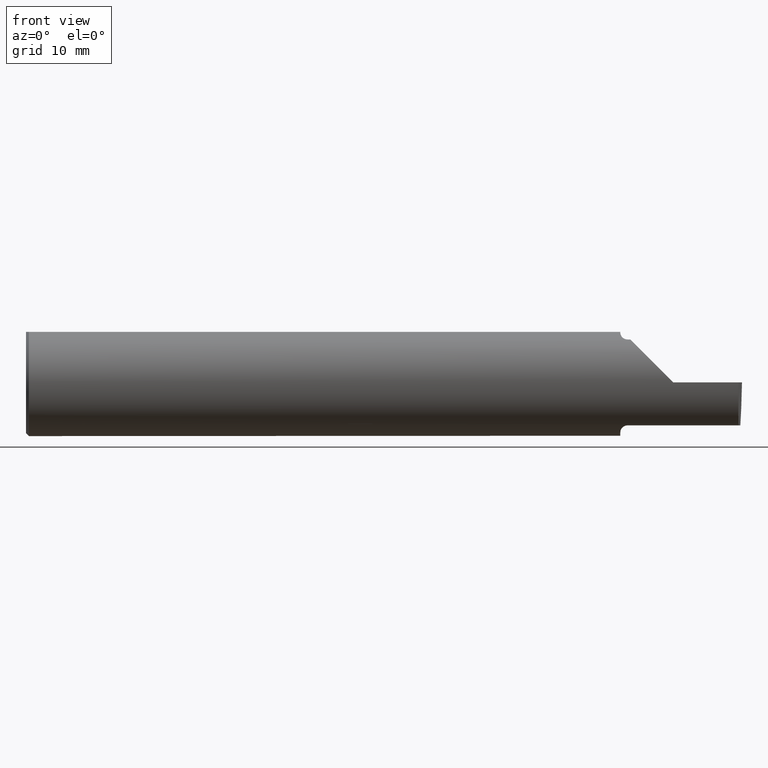
[diagram: clean part render]
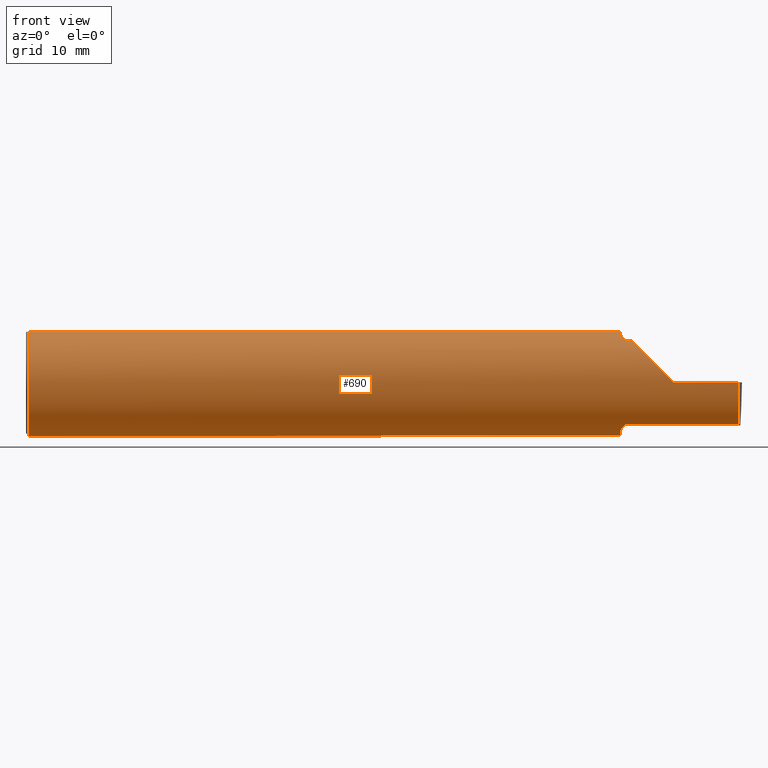
[diagram: same view with one face highlighted and labeled with its STEP entity id]
A machine part, front view. The second image highlights one B-rep face of the part: STEP entity #690.
In plain terms, the highlighted cylindrical surface (partial cylindrical patch) has radius 4.7587 mm, axis along (-1, -0, -0).
Its self-contained STEP definition (entity closure, byte-faithful):
#2 = CARTESIAN_POINT ( 'NONE',  ( 2.113883229301068312, -0.1172600179964003175, 0.1461167706989304760 ) ) ;
#13 = VERTEX_POINT ( 'NONE', #480 ) ;
#14 = DIRECTION ( 'NONE',  ( 0.000000000000000000, 0.000000000000000000, 1.000000000000000000 ) ) ;
#19 = CARTESIAN_POINT ( 'NONE',  ( 0.000000000000000000, 0.06325108694718235836, 0.1763499999999999235 ) ) ;
#23 = ORIENTED_EDGE ( 'NONE', *, *, #715, .F. ) ;
#41 = AXIS2_PLACEMENT_3D ( 'NONE', #283, #216, #14 ) ;
#46 = CARTESIAN_POINT ( 'NONE',  ( 2.075000000000000178, -0.06851976604679065053, 0.1743704796142198643 ) ) ;
#52 = EDGE_CURVE ( 'NONE', #337, #13, #750, .T. ) ;
#60 = DIRECTION ( 'NONE',  ( -1.000000000000000000, -0.000000000000000000, -0.000000000000000000 ) ) ;
#69 = ORIENTED_EDGE ( 'NONE', *, *, #282, .F. ) ;
#70 = CARTESIAN_POINT ( 'NONE',  ( 0.009999999999999346217, -0.06325108694718235836, 0.1763499999999999235 ) ) ;
#84 = ORIENTED_EDGE ( 'NONE', *, *, #433, .T. ) ;
#92 = EDGE_CURVE ( 'NONE', #700, #756, #635, .T. ) ;
#95 = CARTESIAN_POINT ( 'NONE',  ( 2.076062863587533780, -0.08334999999998818354, 0.1677879614275171183 ) ) ;
#117 = CARTESIAN_POINT ( 'NONE',  ( 2.079475235432781677, -0.09757364237049398481, -0.1599863467203318512 ) ) ;
#118 = CARTESIAN_POINT ( 'NONE',  ( 2.202189699843948301, -0.1873500000000000443, 0.05781030015605120170 ) ) ;
#122 = CIRCLE ( 'NONE', #548, 0.1873499999999999888 ) ;
#134 = ORIENTED_EDGE ( 'NONE', *, *, #340, .F. ) ;
#136 = CARTESIAN_POINT ( 'NONE',  ( 2.268430449999999876, -0.1172600179964006090, -0.1461167706989303927 ) ) ;
#147 = CARTESIAN_POINT ( 'NONE',  ( 2.095724556588812515, -0.1172600179964060629, 0.1461167706989260351 ) ) ;
#150 = ORIENTED_EDGE ( 'NONE', *, *, #629, .F. ) ;
#151 = CARTESIAN_POINT ( 'NONE',  ( 2.074999999999999734, -0.07360907839729495528, 0.1723706084642000480 ) ) ;
#158 = CARTESIAN_POINT ( 'NONE',  ( 2.084249444250374061, -0.1073163636891284328, 0.1536158790136665231 ) ) ;
#169 = CARTESIAN_POINT ( 'NONE',  ( 2.075000000000000178, -0.07359296612170564134, -0.1723769398647691520 ) ) ;
#172 = CARTESIAN_POINT ( 'NONE',  ( 3.749399456654646757E-32, -0.1873499999999999610, 3.061616997868383634E-16 ) ) ;
#178 = B_SPLINE_CURVE_WITH_KNOTS ( 'NONE', 3,
 ( #503, #619, #169, #431 ),
 .UNSPECIFIED., .F., .F.,
 ( 4, 4 ),
 ( 0.001278539404338874426, 0.001694873732696222223 ),
 .UNSPECIFIED. ) ;
#185 = VECTOR ( 'NONE', #458, 39.37007874015748143 ) ;
#189 = VERTEX_POINT ( 'NONE', #70 ) ;
#191 = CARTESIAN_POINT ( 'NONE',  ( 2.076062863587533780, -0.08334999999998818354, 0.1677879614275171183 ) ) ;
#201 = VERTEX_POINT ( 'NONE', #383 ) ;
#209 = VECTOR ( 'NONE', #721, 39.37007874015748143 ) ;
#212 = ORIENTED_EDGE ( 'NONE', *, *, #622, .F. ) ;
#216 = DIRECTION ( 'NONE',  ( -1.000000000000000000, -0.000000000000000000, -0.000000000000000000 ) ) ;
#233 = CARTESIAN_POINT ( 'NONE',  ( 2.100000000000000089, -0.1172600179964006090, 0.1461167706989303927 ) ) ;
#237 = CARTESIAN_POINT ( 'NONE',  ( 2.086340974786207170, -0.1102890168945985933, -0.1514792188789464422 ) ) ;
#239 = VECTOR ( 'NONE', #674, 39.37007874015748143 ) ;
#243 = VERTEX_POINT ( 'NONE', #765 ) ;
#252 = DIRECTION ( 'NONE',  ( 1.000000000000000000, 0.000000000000000000, 0.000000000000000000 ) ) ;
#268 = CARTESIAN_POINT ( 'NONE',  ( 2.086319809340846820, -0.1102629523538395662, 0.1514982751257170079 ) ) ;
#273 = CARTESIAN_POINT ( 'NONE',  ( 0.000000000000000000, -0.06325108694718235836, 0.1763499999999999235 ) ) ;
#282 = EDGE_CURVE ( 'NONE', #201, #481, #691, .T. ) ;
#283 = CARTESIAN_POINT ( 'NONE',  ( 0.000000000000000000, 0.000000000000000000, 0.000000000000000000 ) ) ;
#287 = LINE ( 'NONE', #172, #239 ) ;
#288 = DIRECTION ( 'NONE',  ( 1.000000000000000000, 0.000000000000000000, 0.000000000000000000 ) ) ;
#290 = CARTESIAN_POINT ( 'NONE',  ( 2.097868998470238555, -0.1172600179964006506, -0.1461167706989303927 ) ) ;
#298 = CARTESIAN_POINT ( 'NONE',  ( 2.487121452143546296, -0.1873500000000000165, -0.05781030015605123640 ) ) ;
#300 = DIRECTION ( 'NONE',  ( 0.000000000000000000, 0.000000000000000000, -1.000000000000000000 ) ) ;
#304 = CARTESIAN_POINT ( 'NONE',  ( 0.009999999999999346217, 0.000000000000000000, 0.000000000000000000 ) ) ;
#311 = ORIENTED_EDGE ( 'NONE', *, *, #807, .F. ) ;
#314 = VECTOR ( 'NONE', #651, 39.37007874015748143 ) ;
#317 = EDGE_CURVE ( 'NONE', #13, #363, #707, .T. ) ;
#337 = VERTEX_POINT ( 'NONE', #530 ) ;
#340 = EDGE_CURVE ( 'NONE', #521, #756, #459, .T. ) ;
#345 = CARTESIAN_POINT ( 'NONE',  ( 2.100000000000000089, -0.1172600179964006090, 0.1461167706989303927 ) ) ;
#355 = ORIENTED_EDGE ( 'NONE', *, *, #317, .F. ) ;
#363 = VERTEX_POINT ( 'NONE', #768 ) ;
#364 = CARTESIAN_POINT ( 'NONE',  ( 2.077380638915945710, -0.09060738690120606620, -0.1640321561807271122 ) ) ;
#365 = CARTESIAN_POINT ( 'NONE',  ( 2.150065971957464850, -0.1623470442677540371, 0.1099340280425340488 ) ) ;
#373 = ORIENTED_EDGE ( 'NONE', *, *, #769, .T. ) ;
#376 = ORIENTED_EDGE ( 'NONE', *, *, #52, .F. ) ;
#383 = CARTESIAN_POINT ( 'NONE',  ( 2.488026713523223243, -0.1172600179964006090, -0.1461167706989303927 ) ) ;
#388 = ORIENTED_EDGE ( 'NONE', *, *, #551, .T. ) ;
#389 = B_SPLINE_CURVE_WITH_KNOTS ( 'NONE', 3,
 ( #653, #786, #646, #158, #268, #776, #147, #345 ),
 .UNSPECIFIED., .F., .F.,
 ( 4, 2, 2, 4 ),
 ( 0.0004561457252213468741, 0.001084815134961802192, 0.001399149839832029363, 0.001713484544702256317 ),
 .UNSPECIFIED. ) ;
#410 = CARTESIAN_POINT ( 'NONE',  ( 0.009999999999999346217, 0.000000000000000000, -0.1873499999999999888 ) ) ;
#411 = CARTESIAN_POINT ( 'NONE',  ( 2.100000000000000089, -0.1172600179964006090, -0.1461167706989303927 ) ) ;
#413 = CYLINDRICAL_SURFACE ( 'NONE', #41, 0.1873499999999999888 ) ;
#428 = CARTESIAN_POINT ( 'NONE',  ( 2.488026713523223243, -0.1172600179964006090, -0.1461167706989303927 ) ) ;
#429 = CARTESIAN_POINT ( 'NONE',  ( 2.075000000000000178, 0.000000000000000000, 0.000000000000000000 ) ) ;
#431 = CARTESIAN_POINT ( 'NONE',  ( 2.075000000000000178, -0.06851976604679065053, -0.1743704796142198643 ) ) ;
#432 = CARTESIAN_POINT ( 'NONE',  ( 2.260000000000000231, -0.1873499999999999888, 2.939152317953647352E-17 ) ) ;
#433 = EDGE_CURVE ( 'NONE', #189, #685, #122, .T. ) ;
#437 = EDGE_CURVE ( 'NONE', #624, #805, #444, .T. ) ;
#444 = CIRCLE ( 'NONE', #763, 0.1873499999999999888 ) ;
#458 = DIRECTION ( 'NONE',  ( 1.000000000000000000, 0.000000000000000000, 0.000000000000000000 ) ) ;
#459 = LINE ( 'NONE', #701, #314 ) ;
#468 = DIRECTION ( 'NONE',  ( 0.000000000000000000, 0.000000000000000000, -1.000000000000000000 ) ) ;
#471 = CARTESIAN_POINT ( 'NONE',  ( 0.009999999999999346217, 0.000000000000000000, 0.000000000000000000 ) ) ;
#478 = CARTESIAN_POINT ( 'NONE',  ( 2.092163414264744059, -0.1151183835841405462, -0.1478135984872521735 ) ) ;
#480 = CARTESIAN_POINT ( 'NONE',  ( 2.075000000000000178, 0.06325108694718235836, 0.1763499999999999235 ) ) ;
#481 = VERTEX_POINT ( 'NONE', #411 ) ;
#483 = CARTESIAN_POINT ( 'NONE',  ( 2.487084196965268390, -0.1623470442677540926, -0.1099340280425339100 ) ) ;
#486 = ORIENTED_EDGE ( 'NONE', *, *, #437, .F. ) ;
#493 = ORIENTED_EDGE ( 'NONE', *, *, #568, .T. ) ;
#495 = DIRECTION ( 'NONE',  ( 0.000000000000000000, 0.000000000000000000, -1.000000000000000000 ) ) ;
#503 = CARTESIAN_POINT ( 'NONE',  ( 2.076062863587535556, -0.08334999999999991027, -0.1677879614275112619 ) ) ;
#517 = CARTESIAN_POINT ( 'NONE',  ( 2.260000000000000231, -0.1873499999999999888, 2.939152317953647352E-17 ) ) ;
#521 = VERTEX_POINT ( 'NONE', #233 ) ;
#522 = CARTESIAN_POINT ( 'NONE',  ( 2.075000000000000178, -0.06851976604679065053, 0.1743704796142198643 ) ) ;
#530 = CARTESIAN_POINT ( 'NONE',  ( 2.075000000000000178, -0.06851976604679065053, -0.1743704796142198643 ) ) ;
#548 = AXIS2_PLACEMENT_3D ( 'NONE', #471, #638, #468 ) ;
#551 = EDGE_CURVE ( 'NONE', #201, #676, #686, .T. ) ;
#552 = CARTESIAN_POINT ( 'NONE',  ( 2.076062863587535556, -0.08334999999999991027, -0.1677879614275112619 ) ) ;
#553 = CARTESIAN_POINT ( 'NONE',  ( 2.113883229301068312, -0.1172600179964003175, 0.1461167706989304760 ) ) ;
#555 = B_SPLINE_CURVE_WITH_KNOTS ( 'NONE', 3,
 ( #522, #151, #719, #95 ),
 .UNSPECIFIED., .F., .F.,
 ( 4, 4 ),
 ( 4.423516731080748054E-05, 0.0004561457252213468741 ),
 .UNSPECIFIED. ) ;
#560 = ORIENTED_EDGE ( 'NONE', *, *, #570, .F. ) ;
#561 = VECTOR ( 'NONE', #60, 39.37007874015748143 ) ;
#568 = EDGE_CURVE ( 'NONE', #676, #700, #287, .T. ) ;
#570 = EDGE_CURVE ( 'NONE', #189, #624, #612, .T. ) ;
#599 = CARTESIAN_POINT ( 'NONE',  ( 2.095804171164107110, -0.1167508198888948939, -0.1465276362740038363 ) ) ;
#612 = LINE ( 'NONE', #273, #185 ) ;
#615 = CARTESIAN_POINT ( 'NONE',  ( 2.076612951569643872, -0.08702537370779858672, -0.1659621904011592264 ) ) ;
#619 = CARTESIAN_POINT ( 'NONE',  ( 2.075346246588685162, -0.07856197451716401270, -0.1701664510438046229 ) ) ;
#622 = EDGE_CURVE ( 'NONE', #805, #785, #555, .T. ) ;
#624 = VERTEX_POINT ( 'NONE', #659 ) ;
#629 = EDGE_CURVE ( 'NONE', #785, #521, #389, .T. ) ;
#635 =( BOUNDED_CURVE ( )  B_SPLINE_CURVE ( 3, ( #432, #118, #365, #553 ),
 .UNSPECIFIED., .F., .F. ) 
 B_SPLINE_CURVE_WITH_KNOTS ( ( 4, 4 ),
 ( 4.712388980384688786, 5.606916381293139295 ),
 .UNSPECIFIED. ) 
 CURVE ( )  GEOMETRIC_REPRESENTATION_ITEM ( )  RATIONAL_B_SPLINE_CURVE ( ( 1.000000000000000000, 0.9344226172588797619, 0.9344226172588797619, 1.000000000000000000 ) ) 
 REPRESENTATION_ITEM ( '' )  );
#638 = DIRECTION ( 'NONE',  ( 1.000000000000000000, 0.000000000000000000, 0.000000000000000000 ) ) ;
#646 = CARTESIAN_POINT ( 'NONE',  ( 2.079075010165368997, -0.09778159395695865119, 0.1599914159748310749 ) ) ;
#651 = DIRECTION ( 'NONE',  ( 1.000000000000000000, 0.000000000000000000, 0.000000000000000000 ) ) ;
#653 = CARTESIAN_POINT ( 'NONE',  ( 2.076062863587533780, -0.08334999999998818354, 0.1677879614275171183 ) ) ;
#656 = AXIS2_PLACEMENT_3D ( 'NONE', #304, #252, #300 ) ;
#659 = CARTESIAN_POINT ( 'NONE',  ( 2.075000000000000178, -0.06325108694718283020, 0.1763499999999999235 ) ) ;
#660 = CARTESIAN_POINT ( 'NONE',  ( 2.488131149766799943, -0.1873499999999999888, 0.000000000000000000 ) ) ;
#662 = FACE_OUTER_BOUND ( 'NONE', #708, .T. ) ;
#670 = CIRCLE ( 'NONE', #656, 0.1873499999999999888 ) ;
#672 = CARTESIAN_POINT ( 'NONE',  ( 2.100000000000000089, -0.1172600179964006090, -0.1461167706989303927 ) ) ;
#674 = DIRECTION ( 'NONE',  ( -1.000000000000000000, -0.000000000000000000, -0.000000000000000000 ) ) ;
#676 = VERTEX_POINT ( 'NONE', #709 ) ;
#677 = CARTESIAN_POINT ( 'NONE',  ( 2.080806801261507299, -0.1009700360460130675, -0.1578590382459147679 ) ) ;
#685 = VERTEX_POINT ( 'NONE', #410 ) ;
#686 =( BOUNDED_CURVE ( )  B_SPLINE_CURVE ( 3, ( #428, #483, #298, #660 ),
 .UNSPECIFIED., .F., .F. ) 
 B_SPLINE_CURVE_WITH_KNOTS ( ( 4, 4 ),
 ( 5.852427379562187504, 6.746954780470635349 ),
 .UNSPECIFIED. ) 
 CURVE ( )  GEOMETRIC_REPRESENTATION_ITEM ( )  RATIONAL_B_SPLINE_CURVE ( ( 1.000000000000000000, 0.9344226172588802060, 0.9344226172588802060, 1.000000000000000000 ) ) 
 REPRESENTATION_ITEM ( '' )  );
#690 = ADVANCED_FACE ( 'NONE', ( #662 ), #413, .T. ) ;
#691 = LINE ( 'NONE', #136, #561 ) ;
#700 = VERTEX_POINT ( 'NONE', #517 ) ;
#701 = CARTESIAN_POINT ( 'NONE',  ( 2.268430449999999876, -0.1172600179964006090, 0.1461167706989303927 ) ) ;
#707 = LINE ( 'NONE', #19, #209 ) ;
#708 = EDGE_LOOP ( 'NONE', ( #69, #388, #493, #711, #134, #150, #212, #486, #560, #84, #373, #355, #376, #23, #311 ) ) ;
#709 = CARTESIAN_POINT ( 'NONE',  ( 2.488131149766799943, -0.1873499999999999888, 0.000000000000000000 ) ) ;
#711 = ORIENTED_EDGE ( 'NONE', *, *, #92, .T. ) ;
#715 = EDGE_CURVE ( 'NONE', #243, #337, #178, .T. ) ;
#716 = DIRECTION ( 'NONE',  ( 1.000000000000000000, 0.000000000000000000, 0.000000000000000000 ) ) ;
#719 = CARTESIAN_POINT ( 'NONE',  ( 2.075344683557281300, -0.07855153123406183324, 0.1701716388274757685 ) ) ;
#721 = DIRECTION ( 'NONE',  ( -1.000000000000000000, -0.000000000000000000, -0.000000000000000000 ) ) ;
#732 = CARTESIAN_POINT ( 'NONE',  ( 2.090551048069661633, -0.1140002044565610190, -0.1486821290834930975 ) ) ;
#742 = CARTESIAN_POINT ( 'NONE',  ( 2.084228130464465867, -0.1072797540790366294, -0.1536407449207395914 ) ) ;
#748 = B_SPLINE_CURVE_WITH_KNOTS ( 'NONE', 3,
 ( #672, #290, #599, #478, #732, #237, #742, #677, #117, #364, #615, #552 ),
 .UNSPECIFIED., .F., .F.,
 ( 4, 2, 2, 2, 2, 4 ),
 ( 1.967976973726874814E-07, 0.0001599896235275606951, 0.0003197824493577486652, 0.0006393681010181240633, 0.0009589537526784994072, 0.001278539404338874426 ),
 .UNSPECIFIED. ) ;
#750 = CIRCLE ( 'NONE', #790, 0.1873499999999999888 ) ;
#756 = VERTEX_POINT ( 'NONE', #2 ) ;
#763 = AXIS2_PLACEMENT_3D ( 'NONE', #778, #716, #787 ) ;
#765 = CARTESIAN_POINT ( 'NONE',  ( 2.076062863587535556, -0.08334999999999991027, -0.1677879614275112619 ) ) ;
#768 = CARTESIAN_POINT ( 'NONE',  ( 0.009999999999999346217, 0.06325108694718235836, 0.1763499999999999235 ) ) ;
#769 = EDGE_CURVE ( 'NONE', #685, #363, #670, .T. ) ;
#776 = CARTESIAN_POINT ( 'NONE',  ( 2.091924463282975211, -0.1152182125075826846, 0.1477647100440766803 ) ) ;
#778 = CARTESIAN_POINT ( 'NONE',  ( 2.075000000000000178, 0.000000000000000000, 0.000000000000000000 ) ) ;
#785 = VERTEX_POINT ( 'NONE', #191 ) ;
#786 = CARTESIAN_POINT ( 'NONE',  ( 2.077158970028690543, -0.09067355718685703170, 0.1641499263364886996 ) ) ;
#787 = DIRECTION ( 'NONE',  ( 0.000000000000000000, 0.000000000000000000, -1.000000000000000000 ) ) ;
#790 = AXIS2_PLACEMENT_3D ( 'NONE', #429, #288, #495 ) ;
#805 = VERTEX_POINT ( 'NONE', #46 ) ;
#807 = EDGE_CURVE ( 'NONE', #481, #243, #748, .T. ) ;